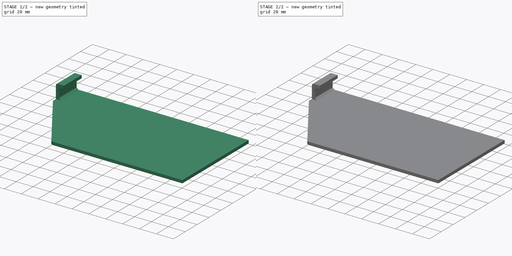
[diagram: build sequence overview — one tinted view per stage of 2, left to right]
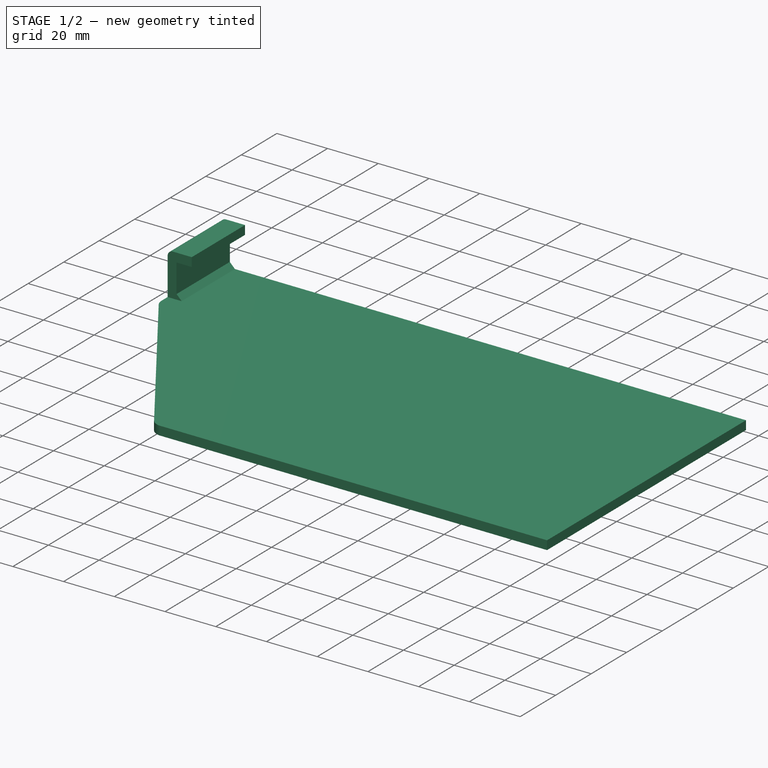
[diagram: stage 1 of 2 — iso view after this stage's code; geometry added in this stage tinted green]
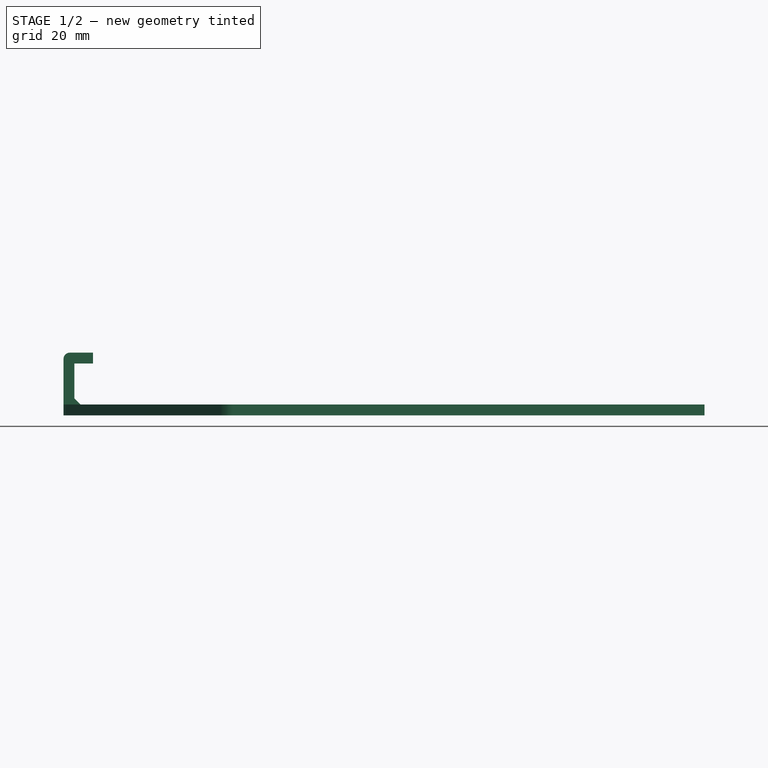
[diagram: stage 1 of 2 — front view after this stage's code; geometry added in this stage tinted green]
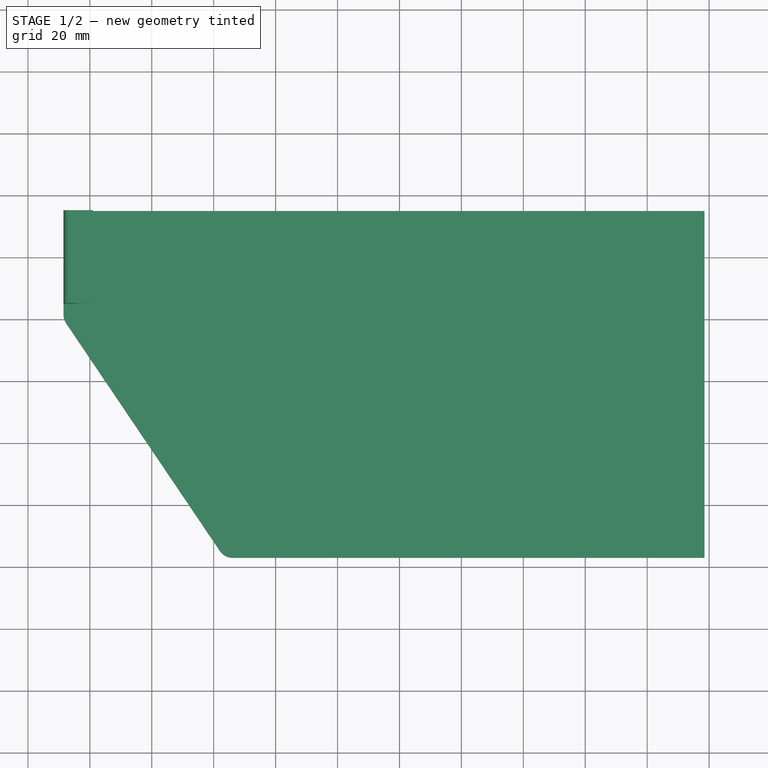
[diagram: stage 1 of 2 — top view after this stage's code; geometry added in this stage tinted green]
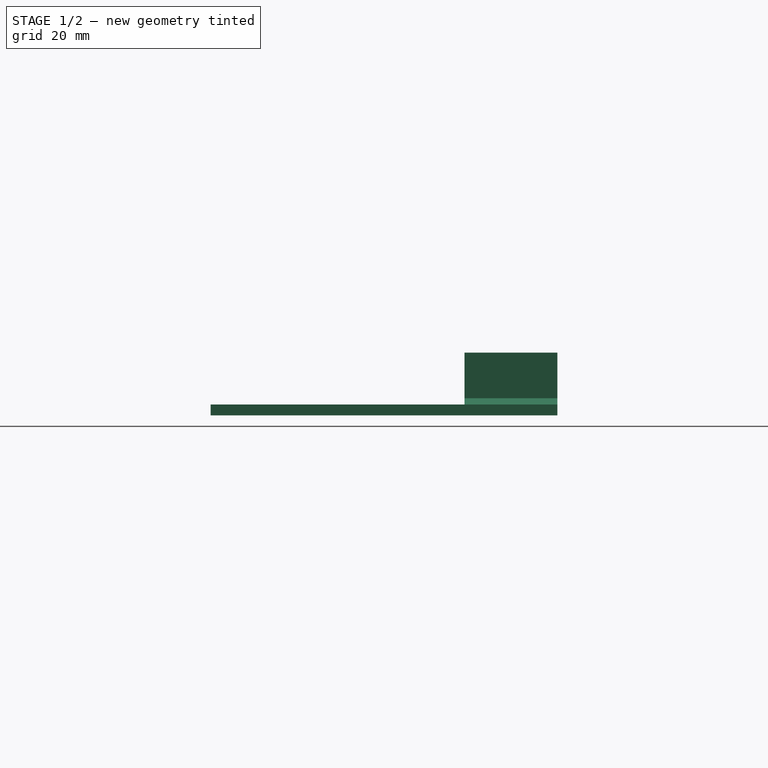
[diagram: stage 1 of 2 — right view after this stage's code; geometry added in this stage tinted green]
FCSTD DOCUMENT  (FreeCAD 1.1R20260414 (Git shallow))
Label: ipad-wall-mount-with-otterbox
License: All rights reserved
LicenseURL: https://en.wikipedia.org/wiki/All_rights_reserved
objects: Sketcher::SketchObject×3, App::VarSet×2, PartDesign::Pad×2, Part::FeaturePython×2, App::Point×1, Part::Extrusion×1, PartDesign::Body×1
note: 15 computed .brp shape members not serialized (recipe doc carries the construction recipe); baked Part::Feature solids carry a one-line shape summary decoded from their .brp

FEATURE [App::Point] Origin003
  Role = Origin
FEATURE [App::VarSet] VarSet
  backplate_smooth_radius = 5
  bottom_bracket_width = 150
  bottom_chamfer = 2
  bracket_overhang = 6
  case_height = 257
  case_thickness = 13.24
  case_width = 187
  corner_protrusion = 3
  corner_radius = 16
  corner_thickness = 16
  hex_diameter = 12
  hex_gap = 4
  model_thickness = 3.5
  side_bracket_width = 30
FEATURE [Sketcher::SketchObject] Sketch001
  ArcFitTolerance = 1e-06
  AttachmentSupport = -> [Origin002]
  ExternalTypes = [0]
  FullyConstrained = true
  MakeInternals = false
  MapMode = 5
  _ExternalGeoVersion = 1
  expr: Constraints[13] = VarSet.backplate_smooth_radius
  expr: Constraints[18] = VarSet.backplate_smooth_radius
  expr: Constraints[19] = VarSet.case_height / 2
  expr: Constraints[22] = VarSet.case_width / 2 + VarSet.model_thickness
  expr: Constraints[23] = VarSet.model_thickness + (VarSet.case_width + VarSet.side_bracket_width) / 2
  expr: Constraints[24] = VarSet.model_thickness + (VarSet.case_height + VarSet.bottom_bracket_width) / 2
  expr: Constraints[7] = (VarSet.case_height - VarSet.bottom_bracket_width) / 2 - VarSet.backplate_smooth_radius + VarSet.model_thickness
  expr: Constraints[8] = (VarSet.case_width - VarSet.side_bracket_width) / 2 - VarSet.backplate_smooth_radius + VarSet.model_thickness
  sketch-geometry (10):
    g0: LineSegment StartX=-128.5 StartY=15 StartZ=0 EndX=-128.5 EndY=-18.4698 EndZ=0
    g1: LineSegment StartX=-73.8433 StartY=-97 StartZ=0 EndX=78.5 EndY=-97 EndZ=0
    g2: LineSegment StartX=78.5 StartY=-97 StartZ=0 EndX=78.5 EndY=15 EndZ=0
    g3: LineSegment StartX=78.5 StartY=15 StartZ=0 EndX=-128.5 EndY=15 EndZ=0
    g4: GeomPoint [constr] X=-128.5 Y=-97 Z=0
    g5: LineSegment StartX=-127.644 StartY=-21.2681 StartZ=0 EndX=-77.9869 EndY=-94.7983 EndZ=0
    g6: ArcOfCircle CenterX=-123.5 CenterY=-18.4698 CenterZ=0 NormalX=0 NormalY=0 NormalZ=1 AngleXU=0 Radius=5 StartAngle=3.14159 EndAngle=3.73557
    g7: GeomPoint [constr] X=-128.5 Y=-20 Z=0
    g8: ArcOfCircle CenterX=-73.8433 CenterY=-92 CenterZ=0 NormalX=0 NormalY=0 NormalZ=1 AngleXU=0 Radius=5 StartAngle=3.73557 EndAngle=4.71239
    g9: GeomPoint [constr] X=-76.5 Y=-97 Z=0
  constraints (25):
    c: Coincident(g1,g2)
    c: Coincident(g2,g3)
    c: Coincident(g3,g0)
    c: Vertical(g0)
    c: Horizontal(g3)
    c: PointOnObject(g4,g0)
    c: PointOnObject(g4,g1)
    c: DistanceX(g4,g9) = 52
    c: DistanceY(g4,g7) = 77
    c: PointOnObject(g7,g0)
    c: PointOnObject(g7,g5)
    c: Tangent(g0,g6) = -1.5708
    c: Tangent(g5,g6) = -1.5708
    c: Radius(g6) = 5
    c: PointOnObject(g9,g1)
    c: PointOnObject(g9,g5)
    c: Tangent(g1,g8) = -1.5708
    c: Tangent(g5,g8) = -1.5708
    c: Radius(g8) = 5
    c: DistanceX(g0,g-1) = 128.5
    c: Parallel(g0,g2)
    c: Parallel(g3,g1)
    c: DistanceY(g1,g-1) = 97
    c: DistanceY(g2,g2) = 112
    c: DistanceX(g3,g3) = 207
FEATURE [PartDesign::Pad] Pad001
  Direction = (0,0,1)
  Length = 3.5
  Length2 = 10
  Profile = -> Sketch001
  ReferenceAxis = -> Sketch001 [N_Axis]
  Refine = true
  SideType = 0
  Suppressed = false
  Type = 0
  Type2 = 0
  expr: Length = VarSet.model_thickness
FEATURE [Sketcher::SketchObject] Sketch002  label="side_bracket_sketch"
  ArcFitTolerance = 1e-06
  AttachmentOffset = pos=(0,0,-15) rot=(0,0,1;0rad)
  AttachmentSupport = -> [Sketch]
  ExternalTypes = [0]
  FullyConstrained = true
  MakeInternals = false
  MapMode = 3
  Placement = pos=(0,15,-3.3e-15) rot=(1,0,0;1.5708rad)
  _ExternalGeoVersion = 1
  expr: .AttachmentOffset.Base.z = -VarSet002.side_bracket_width / 2
  expr: Constraints[13] = VarSet002.model_thickness
  expr: Constraints[14] = VarSet002.bracket_overhang
  expr: Constraints[15] = VarSet002.model_thickness
  expr: Constraints[16] = VarSet002.bottom_chamfer
  expr: Constraints[17] = VarSet002.bottom_chamfer
  expr: Constraints[18] = VarSet002.model_thickness * 2 + VarSet002.case_thickness
  expr: Constraints[19] = VarSet002.model_thickness + VarSet002.bracket_overhang
  expr: Constraints[20] = -(VarSet002.case_height / 2)
  expr: Constraints[26] = VarSet002.bottom_chamfer
  sketch-geometry (10):
    g0: LineSegment StartX=-128.5 StartY=0 StartZ=0 EndX=-128.5 EndY=18.24 EndZ=0
    g1: LineSegment StartX=-126.5 StartY=20.24 StartZ=0 EndX=-119 EndY=20.24 EndZ=0
    g2: LineSegment StartX=-119 StartY=20.24 StartZ=0 EndX=-119 EndY=16.74 EndZ=0
    g3: LineSegment StartX=-119 StartY=16.74 StartZ=0 EndX=-125 EndY=16.74 EndZ=0
    g4: LineSegment StartX=-125 StartY=16.74 StartZ=0 EndX=-125 EndY=5.5 EndZ=0
    g5: LineSegment StartX=-125 StartY=5.5 StartZ=0 EndX=-123 EndY=3.5 EndZ=0
    g6: LineSegment StartX=-123 StartY=3.5 StartZ=0 EndX=-123 EndY=0 EndZ=0
    g7: LineSegment StartX=-123 StartY=0 StartZ=0 EndX=-128.5 EndY=0 EndZ=0
    g8: ArcOfCircle CenterX=-126.5 CenterY=18.24 CenterZ=0 NormalX=0 NormalY=0 NormalZ=1 AngleXU=0 Radius=2 StartAngle=1.5708 EndAngle=3.14159
    g9: GeomPoint [constr] X=-128.5 Y=20.24 Z=0
  constraints (28):
    c: Coincident(g1,g2)
    c: Coincident(g2,g3)
    c: Coincident(g3,g4)
    c: Coincident(g4,g5)
    c: Coincident(g5,g6)
    c: Coincident(g6,g7)
    c: Coincident(g7,g0)
    c: Vertical(g0)
    c: Vertical(g2)
    c: Vertical(g4)
    c: Vertical(g6)
    c: Horizontal(g1)
    c: Horizontal(g3)
    c: Distance(g2) = 3.5
    c: Distance(g3) = 6
    c: Distance(g6) = 3.5
    c: DistanceX(g4,g5) = 2
    c: DistanceY(g5,g4) = 2
    c: Distance(g0,g9) = 20.24
    c: Distance(g1,g9) = 9.5
    c: DistanceX(g0) = -128.5
    c: DistanceY(g0) = 0
    c: PointOnObject(g9,g0)
    c: PointOnObject(g9,g1)
    c: Tangent(g0,g8) = 1.5708
    c: Tangent(g1,g8) = 1.5708
    c: Radius(g8) = 2
    c: Horizontal(g7)
FEATURE [PartDesign::Pad] Pad
  BaseFeature = -> Pad001
  Direction = (0,-1,2e-16)
  Length = 30
  Length2 = 10
  Profile = -> Sketch002
  ReferenceAxis = -> Sketch002 [N_Axis]
  Refine = true
  SideType = 0
  Suppressed = false
  Type = 0
  Type2 = 0
  expr: Length = VarSet002.side_bracket_width
FEATURE [PartDesign::Body] Body001  label="bracket"
  AllowCompound = true
  Group = -> [Sketch001,Pad001,VarSet,Sketch,Sketch002,Pad]
  Origin = -> Origin002
  Tip = -> Pad
FEATURE [App::VarSet] VarSet002
  backplate_smooth_radius = 5
  bottom_bracket_width = 150
  bottom_chamfer = 2
  bracket_overhang = 6
  case_height = 257
  case_thickness = 13.24
  case_width = 187
  corner_protrusion = 3
  corner_radius = 16
  corner_thickness = 16
  hex_diameter = 12
  hex_gap = 4
  model_thickness = 3.5
  side_bracket_width = 30
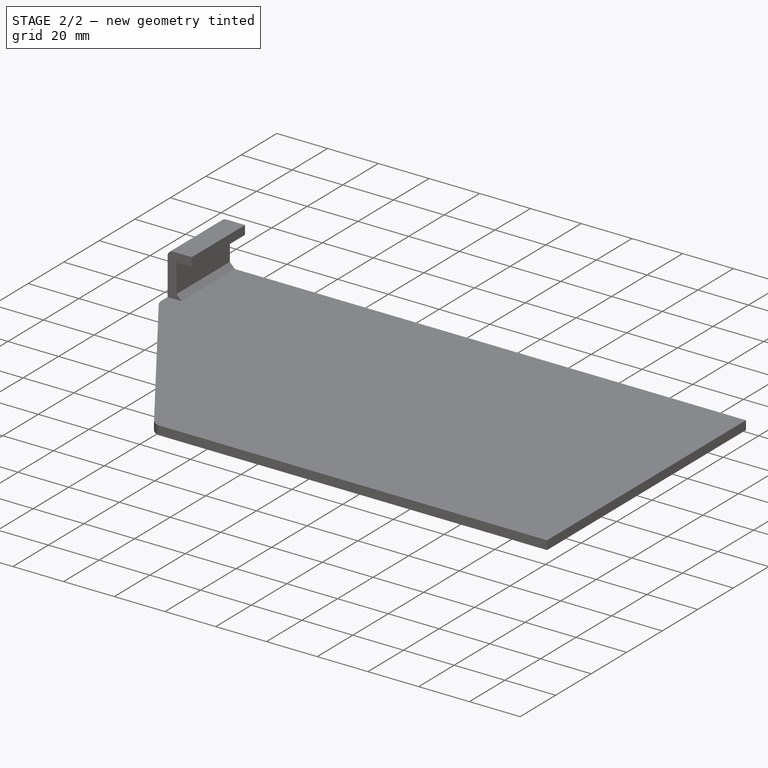
[diagram: stage 2 of 2 — iso view after this stage's code; geometry added in this stage tinted green]
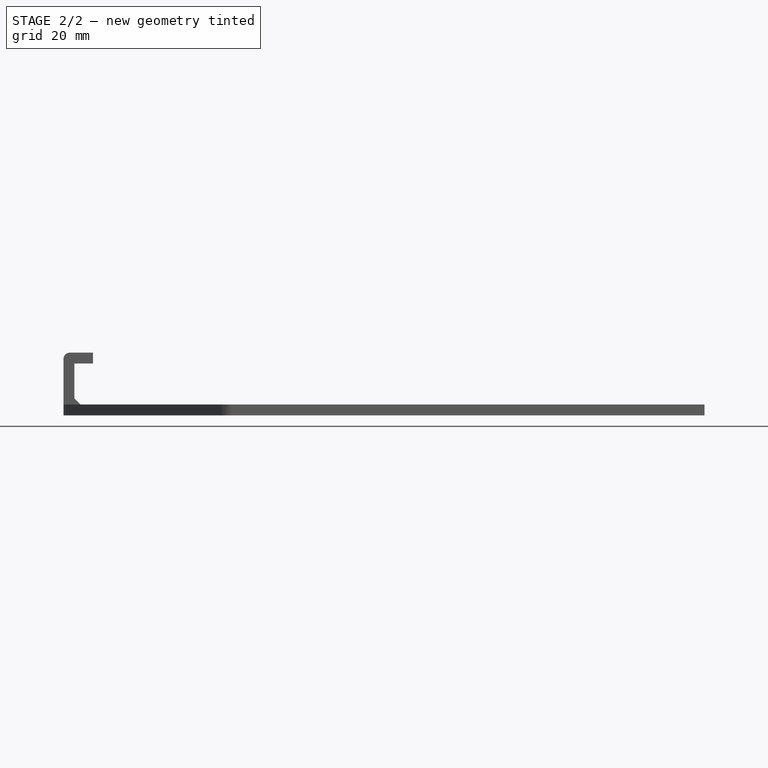
[diagram: stage 2 of 2 — front view after this stage's code; geometry added in this stage tinted green]
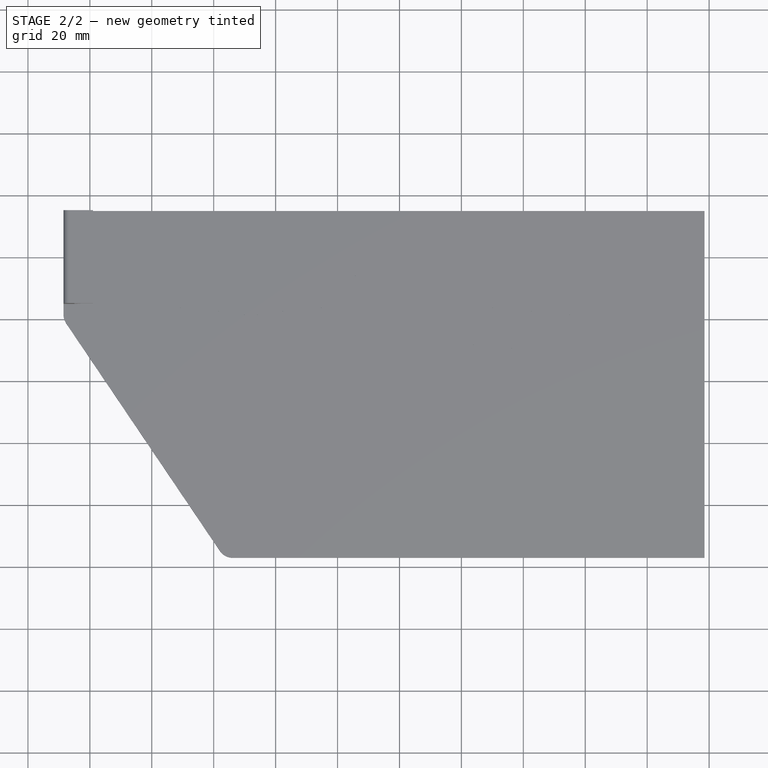
[diagram: stage 2 of 2 — top view after this stage's code; geometry added in this stage tinted green]
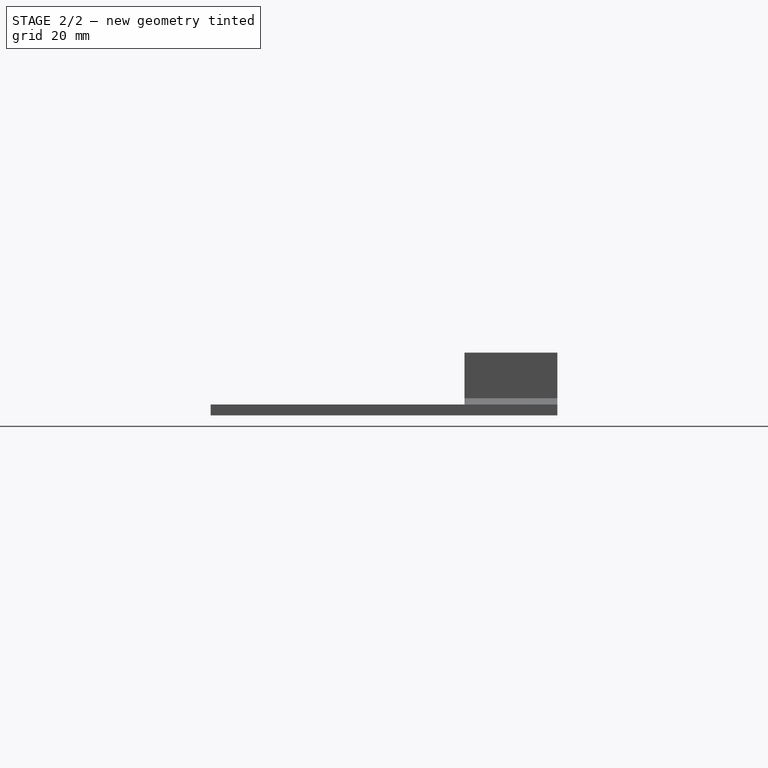
[diagram: stage 2 of 2 — right view after this stage's code; geometry added in this stage tinted green]
FEATURE [Sketcher::SketchObject] Sketch
  ArcFitTolerance = 1e-06
  AttachmentSupport = -> [Origin002]
  ExternalTypes = [0]
  FullyConstrained = true
  MakeInternals = false
  MapMode = 5
  _ExternalGeoVersion = 1
  expr: Constraints[19] = VarSet.hex_diameter
  expr: Constraints[37] = VarSet.hex_diameter
  expr: Constraints[47] = VarSet.hex_gap
  sketch-geometry (17):
    g0: LineSegment StartX=5.19615 StartY=3 StartZ=0 EndX=-1.374e-13 EndY=6 EndZ=0
    g1: LineSegment StartX=-1.374e-13 StartY=6 StartZ=0 EndX=-5.19615 EndY=3 EndZ=0
    g2: LineSegment StartX=-5.19615 StartY=3 StartZ=0 EndX=-5.19615 EndY=-3 EndZ=0
    g3: LineSegment StartX=-5.19615 StartY=-3 StartZ=0 EndX=-3.18e-14 EndY=-6 EndZ=0
    g4: LineSegment StartX=-3.18e-14 StartY=-6 StartZ=0 EndX=5.19615 EndY=-3 EndZ=0
    g5: LineSegment StartX=5.19615 StartY=-3 StartZ=0 EndX=5.19615 EndY=3 EndZ=0
    g6: Circle [constr] CenterX=0 CenterY=0 CenterZ=0 NormalX=0 NormalY=0 NormalZ=1 AngleXU=0 Radius=6
    g7: LineSegment StartX=12.3923 StartY=-9.4641 StartZ=0 EndX=7.19615 EndY=-6.4641 EndZ=0
    g8: LineSegment StartX=7.19615 StartY=-6.4641 StartZ=0 EndX=2 EndY=-9.4641 EndZ=0
    g9: LineSegment StartX=2 StartY=-9.4641 StartZ=0 EndX=2 EndY=-15.4641 EndZ=0
    g10: LineSegment StartX=2 StartY=-15.4641 StartZ=0 EndX=7.19615 EndY=-18.4641 EndZ=0
    g11: LineSegment StartX=7.19615 StartY=-18.4641 StartZ=0 EndX=12.3923 EndY=-15.4641 EndZ=0
    g12: LineSegment StartX=12.3923 StartY=-15.4641 StartZ=0 EndX=12.3923 EndY=-9.4641 EndZ=0
    g13: Circle [constr] CenterX=7.19615 CenterY=-12.4641 CenterZ=0 NormalX=0 NormalY=0 NormalZ=1 AngleXU=0 Radius=6
    g14: LineSegment [constr] StartX=5.19615 StartY=-3 StartZ=0 EndX=7.19615 EndY=-6.4641 EndZ=0
    g15: LineSegment [constr] StartX=7.19615 StartY=-6.4641 StartZ=0 EndX=9.19615 EndY=-3 EndZ=0
    g16: LineSegment [constr] StartX=9.19615 StartY=-3 StartZ=0 EndX=5.19615 EndY=-3 EndZ=0
  constraints (40):
    c: Coincident(g0,g1)
    c: Coincident(g1,g2)
    c: Coincident(g2,g3)
    c: Coincident(g3,g4)
    c: Coincident(g4,g5)
    c: Coincident(g5,g0)
    c: Equal(g0, g1-g5) x5
    c: PointOnObject(g0,g6)
    c: PointOnObject(g1,g6)
    c: PointOnObject(g2,g6)
    c: PointOnObject(g3,g6)
    c: PointOnObject(g4,g6)
    c: PointOnObject(g5,g6)
    c: Coincident(g6,g-1)
    c: Vertical(g2)
    c: Diameter(g6) = 12
    c: Coincident(g7,g8)
    c: Coincident(g8,g9)
    c: Coincident(g9,g10)
    c: Coincident(g10,g11)
    c: Coincident(g11,g12)
    c: Coincident(g12,g7)
    c: Equal(g7, g8-g12) x5
    c: PointOnObject(g7,g13)
    c: PointOnObject(g8,g13)
    c: PointOnObject(g9,g13)
    c: PointOnObject(g10,g13)
    c: PointOnObject(g11,g13)
    c: PointOnObject(g12,g13)
    c: Diameter(g13) = 12
    c: Vertical(g9)
    c: Coincident(g14,g7)
    c: Coincident(g14,g15)
    c: Coincident(g15,g16)
    c: Coincident(g16,g14)
    c: Coincident(g14,g4)
    c: Equal(g14,g15)
    c: Equal(g15,g16)
    c: Angle(g4,g14) = 1.5708
    c: Distance(g14) = 4
FEATURE [Part::FeaturePython] Array  # Draft array (typed FeaturePython)
  AlwaysSyncPlacement = false
  Angle = 360
  ArrayType = 0
  Axis = (0,0,1)
  Base = -> Sketch
  Center = (0,0,0)
  Count = 39
  ExpandArray = false
  Fuse = false
  IntervalAxis = (0,0,0)
  IntervalX = (14.3923,0,0)
  IntervalY = (-14.3923,24.928,0)
  IntervalZ = (0,0,100)
  NumberCircles = 3
  NumberPolar = 5
  NumberX = 13
  NumberY = 3
  NumberZ = 1
  PlacementList = 39 placements: [(0,0,0),(-14.3923,24.928,0),(-28.7846,49.856,0),(14.3923,0,0),(0,24.928,0),(-14.3923,49.856,0),(28.7846,0,0),(14.3923,24.928,0),(0,49.856,0),(43.1769,0,0),(28.7846,24.928,0),(14.3923,49.856,0),(57.5692,0,0),(43.1769,24.928,0),(28.7846,49.856,0),(71.9615,0,0),(57.5692,24.928,0),(43.1769,49.856,0),(86.3539,0,0),(71.9615,24.928,0),(57.5692,49.856,0),(100.746,0,0),(86.3539,24.928,0),+16 more]
  RadialDistance = 50
  ScaleList = (39) [(1,1,1),(1,1,1),(1,1,1),(1,1,1),(1,1,1),(1,1,1),(1,1,1),(1,1,1),(1,1,1),(1,1,1),(1,1,1),(1,1,1),(1,1,1),(1,1,1),(1,1,1),(1,1,1),(1,1,1),(1,1,1),+21 more]
  Symmetry = 1
  TangentialDistance = 25
  expr: .IntervalX.x = VarSet.hex_diameter / 1.1547 + VarSet.hex_gap
  expr: .IntervalY.x = -1 * (VarSet.hex_diameter / 1.1547 + VarSet.hex_gap)
  expr: .IntervalY.y = VarSet.hex_diameter * 1.5 + VarSet.hex_gap * 2 * 0.866
FEATURE [Part::Extrusion] Extrude
  Base = -> Array
  Dir = (0,0,1)
  DirMode = 2
  FaceMakerClass = Part::FaceMakerBullseye
  FaceMakerMode = 3
  InnerWireTaper = 0
  LengthFwd = 7
  LengthRev = 0
  Placement = pos=(-68,-59,-1.75) rot=(0,0,1;0rad)
  Solid = true
  Symmetric = false
  expr: .Placement.Base.z = -VarSet.model_thickness / 2
  expr: LengthFwd = VarSet.model_thickness * 2
FEATURE [Part::FeaturePython] Cutout  # WARN: FeaturePython — macro-defined, semantics opaque (R4)
  Base = -> Pad001
  Tolerance = 0
  Tool = -> Extrude
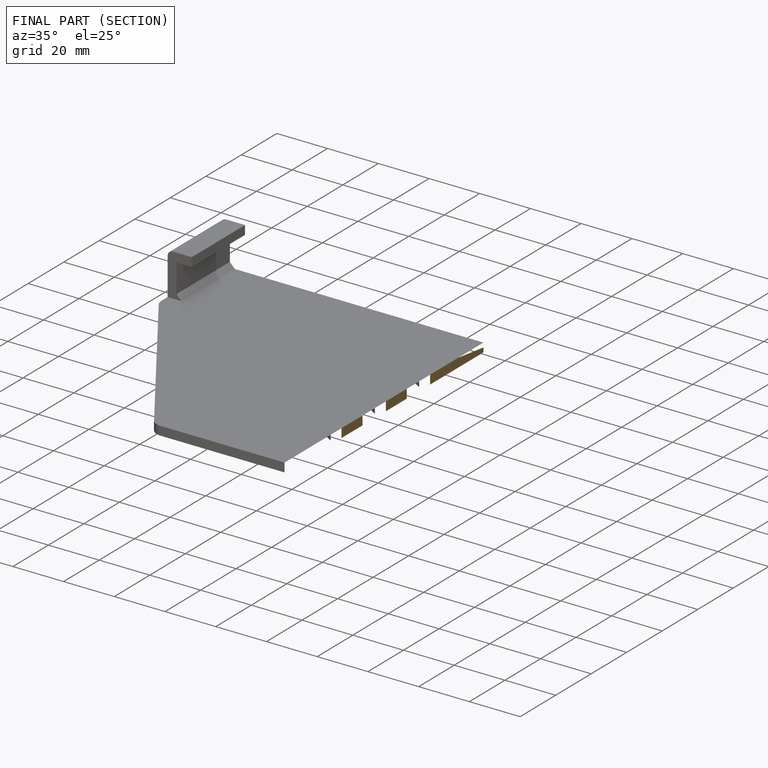
[diagram: finished part — half-section view (interior)]
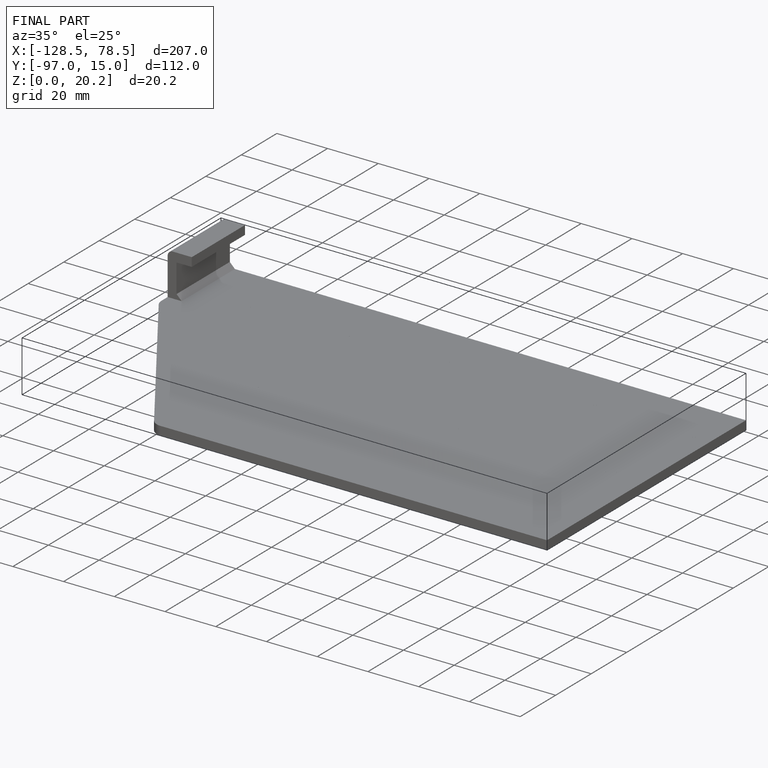
[diagram: finished part — iso view with bounding-box wireframe]
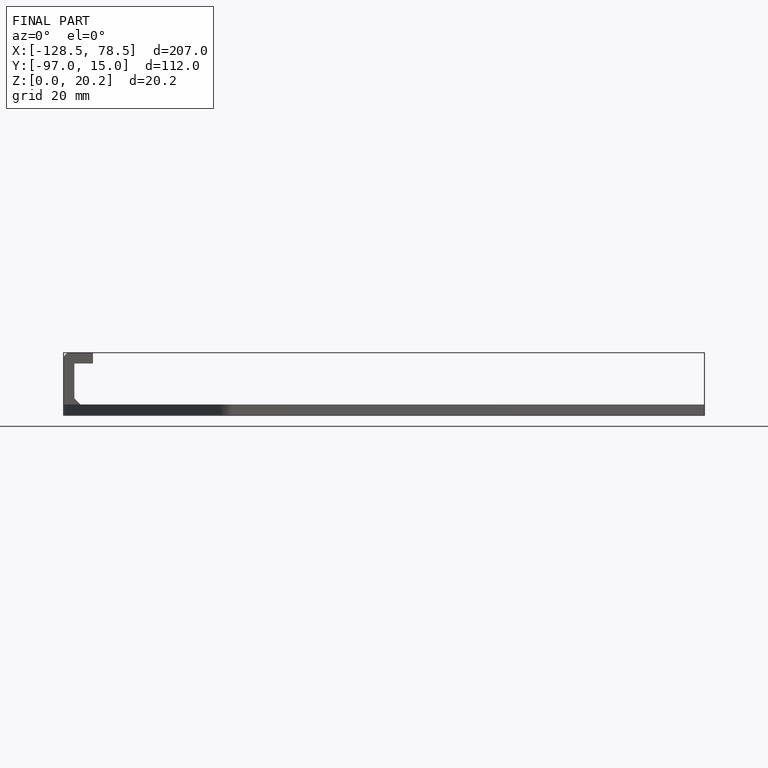
[diagram: finished part — front view with bounding-box wireframe]
